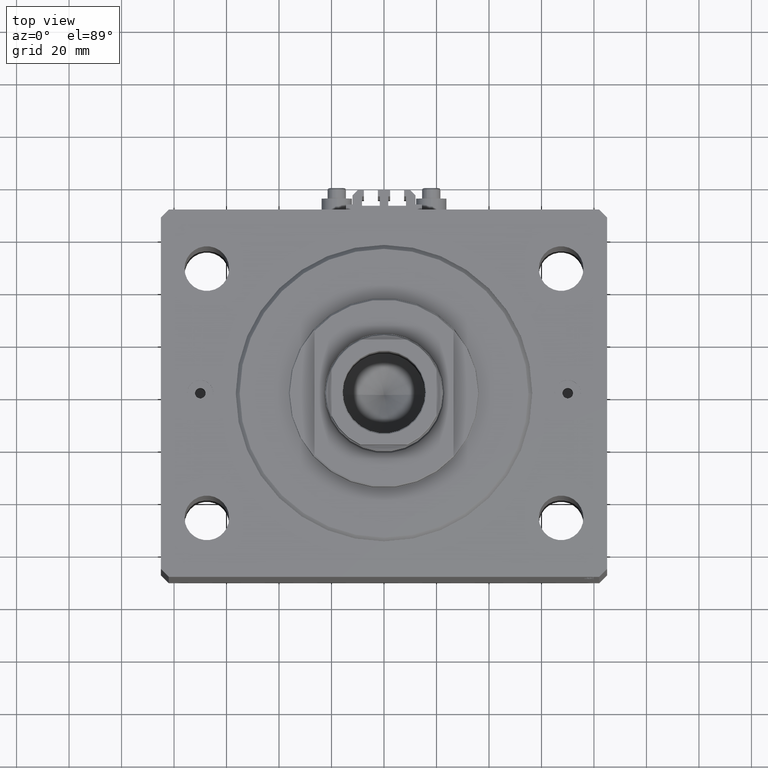
[diagram: clean part render]
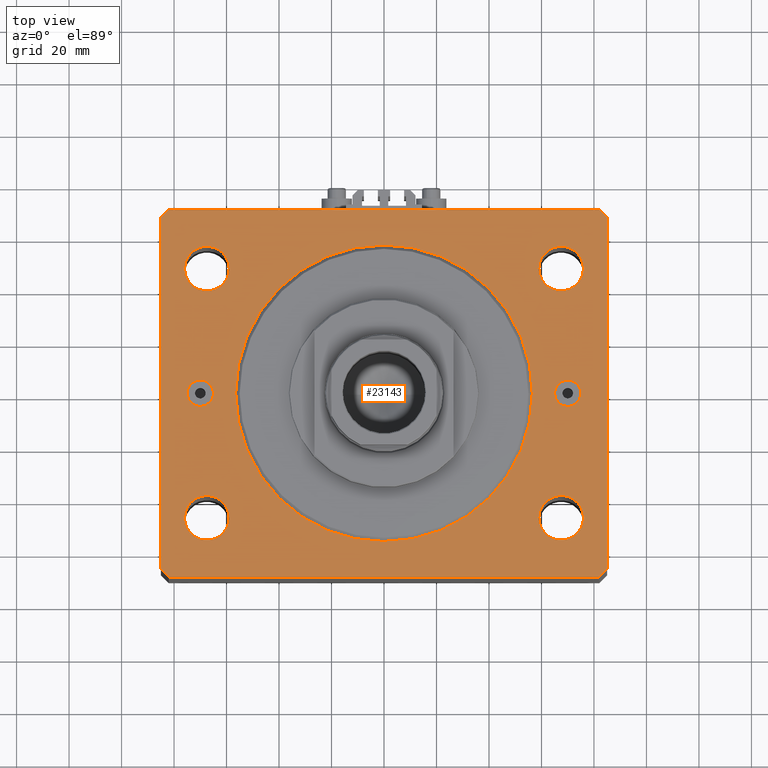
[diagram: same view with one face highlighted and labeled with its STEP entity id]
A machine part, top view. The second image highlights one B-rep face of the part: STEP entity #23143.
In plain terms, the highlighted planar face has unit normal (0, 0, 1).
Its self-contained STEP definition (entity closure, byte-faithful):
#306 = LINE ( 'NONE', #7675, #8315 ) ;
#588 = ORIENTED_EDGE ( 'NONE', *, *, #18826, .F. ) ;
#655 = CARTESIAN_POINT ( 'NONE',  ( -85.00000000000001421, 67.00000000000001421, 0.000000000000000000 ) ) ;
#1389 = CARTESIAN_POINT ( 'NONE',  ( -82.00000000000000000, 70.00000000000000000, 0.000000000000000000 ) ) ;
#1439 = VERTEX_POINT ( 'NONE', #37854 ) ;
#1448 = AXIS2_PLACEMENT_3D ( 'NONE', #32344, #7239, #25417 ) ;
#1525 = EDGE_CURVE ( 'NONE', #16187, #46411, #32898, .T. ) ;
#1529 = FACE_BOUND ( 'NONE', #45013, .T. ) ;
#1691 = ORIENTED_EDGE ( 'NONE', *, *, #9113, .T. ) ;
#2327 = DIRECTION ( 'NONE',  ( 1.000000000000000000, 0.000000000000000000, 0.000000000000000000 ) ) ;
#2812 = VERTEX_POINT ( 'NONE', #30480 ) ;
#2965 = DIRECTION ( 'NONE',  ( 0.000000000000000000, -0.000000000000000000, -1.000000000000000000 ) ) ;
#3448 = LINE ( 'NONE', #32817, #16258 ) ;
#3606 = CIRCLE ( 'NONE', #38707, 5.000000000000004441 ) ;
#3696 = ORIENTED_EDGE ( 'NONE', *, *, #9713, .T. ) ;
#3852 = DIRECTION ( 'NONE',  ( -1.000000000000000000, 0.000000000000000000, 0.000000000000000000 ) ) ;
#3910 = DIRECTION ( 'NONE',  ( 1.000000000000000000, 0.000000000000000000, 0.000000000000000000 ) ) ;
#3999 = CARTESIAN_POINT ( 'NONE',  ( -65.00000000000000000, 0.000000000000000000, 0.000000000000000000 ) ) ;
#4633 = CARTESIAN_POINT ( 'NONE',  ( -75.99999999999998579, -47.50000000000001421, 0.000000000000000000 ) ) ;
#4820 = VECTOR ( 'NONE', #3852, 1000.000000000000000 ) ;
#5186 = ORIENTED_EDGE ( 'NONE', *, *, #28212, .F. ) ;
#5228 = VERTEX_POINT ( 'NONE', #17724 ) ;
#5567 = FACE_BOUND ( 'NONE', #18167, .T. ) ;
#5610 = ORIENTED_EDGE ( 'NONE', *, *, #46601, .F. ) ;
#6072 = DIRECTION ( 'NONE',  ( 0.000000000000000000, 0.000000000000000000, 1.000000000000000000 ) ) ;
#6211 = EDGE_CURVE ( 'NONE', #1439, #46560, #3448, .T. ) ;
#7239 = DIRECTION ( 'NONE',  ( 0.000000000000000000, 0.000000000000000000, 1.000000000000000000 ) ) ;
#7332 = EDGE_CURVE ( 'NONE', #24131, #25021, #22399, .T. ) ;
#7601 = CARTESIAN_POINT ( 'NONE',  ( 85.00000000000052580, 66.99999999999995737, 0.000000000000000000 ) ) ;
#7604 = EDGE_CURVE ( 'NONE', #15631, #34339, #39711, .T. ) ;
#7675 = CARTESIAN_POINT ( 'NONE',  ( -85.00000000000000000, -67.00000000000000000, 0.000000000000000000 ) ) ;
#7809 = CIRCLE ( 'NONE', #23839, 8.499999999999992895 ) ;
#7966 = DIRECTION ( 'NONE',  ( 1.000000000000000000, 0.000000000000000000, 0.000000000000000000 ) ) ;
#8250 = EDGE_CURVE ( 'NONE', #20369, #15631, #13789, .T. ) ;
#8271 = EDGE_CURVE ( 'NONE', #2812, #37679, #39970, .T. ) ;
#8315 = VECTOR ( 'NONE', #22251, 1000.000000000000114 ) ;
#8772 = CIRCLE ( 'NONE', #38544, 56.50000000000000711 ) ;
#8904 = ORIENTED_EDGE ( 'NONE', *, *, #6211, .T. ) ;
#9113 = EDGE_CURVE ( 'NONE', #41088, #16177, #15681, .T. ) ;
#9214 = DIRECTION ( 'NONE',  ( 0.000000000000000000, 0.000000000000000000, 1.000000000000000000 ) ) ;
#9232 = CARTESIAN_POINT ( 'NONE',  ( -59.00000000000001421, 47.50000000000000000, 0.000000000000000000 ) ) ;
#9293 = AXIS2_PLACEMENT_3D ( 'NONE', #37208, #11640, #26928 ) ;
#9383 = FACE_BOUND ( 'NONE', #19707, .T. ) ;
#9535 = EDGE_LOOP ( 'NONE', ( #5186, #30686 ) ) ;
#9601 = CARTESIAN_POINT ( 'NONE',  ( 75.99999999999998579, -47.50000000000001421, 0.000000000000000000 ) ) ;
#9713 = EDGE_CURVE ( 'NONE', #46560, #42732, #25147, .T. ) ;
#9838 = ORIENTED_EDGE ( 'NONE', *, *, #22276, .T. ) ;
#10510 = DIRECTION ( 'NONE',  ( -0.7071067811865507924, -0.7071067811865441310, 0.000000000000000000 ) ) ;
#10578 = CARTESIAN_POINT ( 'NONE',  ( 59.00000000000000000, 47.49999999999999289, 0.000000000000000000 ) ) ;
#10783 = CARTESIAN_POINT ( 'NONE',  ( 82.00000000000056843, 70.00000000000000000, 0.000000000000000000 ) ) ;
#10939 = VECTOR ( 'NONE', #39376, 1000.000000000000114 ) ;
#11611 = DIRECTION ( 'NONE',  ( 1.000000000000000000, 0.000000000000000000, 0.000000000000000000 ) ) ;
#11620 = CIRCLE ( 'NONE', #23841, 8.499999999999992895 ) ;
#11640 = DIRECTION ( 'NONE',  ( 0.000000000000000000, -0.000000000000000000, -1.000000000000000000 ) ) ;
#11727 = ORIENTED_EDGE ( 'NONE', *, *, #8271, .F. ) ;
#12093 = ORIENTED_EDGE ( 'NONE', *, *, #8250, .T. ) ;
#12398 = AXIS2_PLACEMENT_3D ( 'NONE', #22383, #40303, #33831 ) ;
#12711 = ORIENTED_EDGE ( 'NONE', *, *, #34298, .F. ) ;
#12746 = DIRECTION ( 'NONE',  ( 1.000000000000000000, 0.000000000000000000, 0.000000000000000000 ) ) ;
#13047 = CARTESIAN_POINT ( 'NONE',  ( -85.00000000000001421, 67.00000000000001421, 0.000000000000000000 ) ) ;
#13391 = LINE ( 'NONE', #35619, #37296 ) ;
#13789 = LINE ( 'NONE', #28374, #10939 ) ;
#14161 = CARTESIAN_POINT ( 'NONE',  ( 82.00000000000001421, -70.00000000000000000, 0.000000000000000000 ) ) ;
#14658 = CARTESIAN_POINT ( 'NONE',  ( 65.00000000000000000, 6.123233995736770227E-16, 0.000000000000000000 ) ) ;
#14738 = CARTESIAN_POINT ( 'NONE',  ( 82.00000000000001421, -70.00000000000000000, 0.000000000000000000 ) ) ;
#14817 = VECTOR ( 'NONE', #46890, 1000.000000000000114 ) ;
#14862 = DIRECTION ( 'NONE',  ( 1.000000000000000000, 0.000000000000000000, 0.000000000000000000 ) ) ;
#15200 = DIRECTION ( 'NONE',  ( 1.035655806553317576E-16, -1.000000000000000000, 0.000000000000000000 ) ) ;
#15631 = VERTEX_POINT ( 'NONE', #38267 ) ;
#15681 = LINE ( 'NONE', #655, #17080 ) ;
#15922 = CIRCLE ( 'NONE', #1448, 5.000000000000004441 ) ;
#16177 = VERTEX_POINT ( 'NONE', #18027 ) ;
#16183 = EDGE_CURVE ( 'NONE', #5228, #21597, #8772, .T. ) ;
#16187 = VERTEX_POINT ( 'NONE', #14658 ) ;
#16258 = VECTOR ( 'NONE', #3910, 1000.000000000000000 ) ;
#16317 = FACE_BOUND ( 'NONE', #9535, .T. ) ;
#17080 = VECTOR ( 'NONE', #15200, 1000.000000000000000 ) ;
#17130 = ORIENTED_EDGE ( 'NONE', *, *, #43523, .F. ) ;
#17724 = CARTESIAN_POINT ( 'NONE',  ( 56.50000000000000711, 0.000000000000000000, 0.000000000000000000 ) ) ;
#18027 = CARTESIAN_POINT ( 'NONE',  ( -85.00000000000000000, -67.00000000000000000, 0.000000000000000000 ) ) ;
#18167 = EDGE_LOOP ( 'NONE', ( #41402, #5610 ) ) ;
#18341 = VERTEX_POINT ( 'NONE', #9232 ) ;
#18626 = CARTESIAN_POINT ( 'NONE',  ( 85.00000000000001421, -67.00000000000000000, 0.000000000000000000 ) ) ;
#18826 = EDGE_CURVE ( 'NONE', #28839, #21846, #15922, .T. ) ;
#18953 = ORIENTED_EDGE ( 'NONE', *, *, #42727, .F. ) ;
#19183 = ORIENTED_EDGE ( 'NONE', *, *, #45627, .F. ) ;
#19429 = DIRECTION ( 'NONE',  ( 1.000000000000000000, 0.000000000000000000, -0.000000000000000000 ) ) ;
#19537 = CARTESIAN_POINT ( 'NONE',  ( 85.00000000000001421, -67.00000000000000000, 0.000000000000000000 ) ) ;
#19707 = EDGE_LOOP ( 'NONE', ( #588, #29420 ) ) ;
#20088 = AXIS2_PLACEMENT_3D ( 'NONE', #23469, #45447, #41405 ) ;
#20369 = VERTEX_POINT ( 'NONE', #7601 ) ;
#20645 = DIRECTION ( 'NONE',  ( 1.000000000000000000, 0.000000000000000000, 0.000000000000000000 ) ) ;
#21427 = ORIENTED_EDGE ( 'NONE', *, *, #34456, .F. ) ;
#21597 = VERTEX_POINT ( 'NONE', #43418 ) ;
#21846 = VERTEX_POINT ( 'NONE', #45507 ) ;
#22251 = DIRECTION ( 'NONE',  ( 0.7071067811865474617, -0.7071067811865474617, 0.000000000000000000 ) ) ;
#22276 = EDGE_CURVE ( 'NONE', #42732, #20369, #30524, .T. ) ;
#22340 = EDGE_CURVE ( 'NONE', #16177, #1439, #306, .T. ) ;
#22383 = CARTESIAN_POINT ( 'NONE',  ( 0.000000000000000000, 0.000000000000000000, 0.000000000000000000 ) ) ;
#22399 = CIRCLE ( 'NONE', #20088, 8.499999999999992895 ) ;
#22611 = CARTESIAN_POINT ( 'NONE',  ( 67.50000000000000000, 47.49999999999999289, 0.000000000000000000 ) ) ;
#23007 = CIRCLE ( 'NONE', #9293, 5.000000000000004441 ) ;
#23143 = ADVANCED_FACE ( 'NONE', ( #45705, #38290, #1529, #45229, #16317, #5567, #9383, #27072 ), #34475, .T. ) ;
#23469 = CARTESIAN_POINT ( 'NONE',  ( -67.49999999999998579, -47.50000000000001421, 0.000000000000000000 ) ) ;
#23580 = VECTOR ( 'NONE', #43525, 1000.000000000000000 ) ;
#23825 = DIRECTION ( 'NONE',  ( 0.000000000000000000, 0.000000000000000000, 1.000000000000000000 ) ) ;
#23839 = AXIS2_PLACEMENT_3D ( 'NONE', #23840, #45101, #38405 ) ;
#23840 = CARTESIAN_POINT ( 'NONE',  ( -67.50000000000000000, 47.50000000000000000, 0.000000000000000000 ) ) ;
#23841 = AXIS2_PLACEMENT_3D ( 'NONE', #27380, #9214, #41488 ) ;
#24131 = VERTEX_POINT ( 'NONE', #4633 ) ;
#24236 = CARTESIAN_POINT ( 'NONE',  ( -67.49999999999998579, -47.50000000000001421, 0.000000000000000000 ) ) ;
#24521 = AXIS2_PLACEMENT_3D ( 'NONE', #27817, #2965, #42395 ) ;
#25021 = VERTEX_POINT ( 'NONE', #28869 ) ;
#25147 = LINE ( 'NONE', #14161, #14817 ) ;
#25417 = DIRECTION ( 'NONE',  ( 1.000000000000000000, 0.000000000000000000, 0.000000000000000000 ) ) ;
#25437 = DIRECTION ( 'NONE',  ( 0.000000000000000000, 0.000000000000000000, 1.000000000000000000 ) ) ;
#25760 = ORIENTED_EDGE ( 'NONE', *, *, #35835, .T. ) ;
#25933 = EDGE_LOOP ( 'NONE', ( #39026, #25760, #1691, #35532, #8904, #3696, #9838, #12093 ) ) ;
#26089 = CARTESIAN_POINT ( 'NONE',  ( -67.50000000000000000, 47.50000000000000000, 0.000000000000000000 ) ) ;
#26130 = CARTESIAN_POINT ( 'NONE',  ( 0.000000000000000000, 0.000000000000000000, 0.000000000000000000 ) ) ;
#26928 = DIRECTION ( 'NONE',  ( 1.000000000000000000, 0.000000000000000000, 0.000000000000000000 ) ) ;
#27072 = FACE_BOUND ( 'NONE', #27476, .T. ) ;
#27183 = CARTESIAN_POINT ( 'NONE',  ( 75.00000000000001421, 0.000000000000000000, 0.000000000000000000 ) ) ;
#27380 = CARTESIAN_POINT ( 'NONE',  ( 67.49999999999998579, -47.50000000000001421, 0.000000000000000000 ) ) ;
#27476 = EDGE_LOOP ( 'NONE', ( #41912, #36299 ) ) ;
#27817 = CARTESIAN_POINT ( 'NONE',  ( 70.00000000000000000, 0.000000000000000000, 0.000000000000000000 ) ) ;
#28212 = EDGE_CURVE ( 'NONE', #25021, #24131, #28376, .T. ) ;
#28374 = CARTESIAN_POINT ( 'NONE',  ( 85.00000000000052580, 66.99999999999995737, 0.000000000000000000 ) ) ;
#28376 = CIRCLE ( 'NONE', #36751, 8.499999999999992895 ) ;
#28839 = VERTEX_POINT ( 'NONE', #3999 ) ;
#28869 = CARTESIAN_POINT ( 'NONE',  ( -59.00000000000000000, -47.50000000000001421, 0.000000000000000000 ) ) ;
#29116 = VERTEX_POINT ( 'NONE', #40030 ) ;
#29420 = ORIENTED_EDGE ( 'NONE', *, *, #30130, .F. ) ;
#30130 = EDGE_CURVE ( 'NONE', #21846, #28839, #3606, .T. ) ;
#30480 = CARTESIAN_POINT ( 'NONE',  ( 76.00000000000001421, 47.49999999999999289, 0.000000000000000000 ) ) ;
#30524 = LINE ( 'NONE', #19537, #23580 ) ;
#30686 = ORIENTED_EDGE ( 'NONE', *, *, #7332, .F. ) ;
#30883 = CARTESIAN_POINT ( 'NONE',  ( 0.000000000000000000, 0.000000000000000000, 0.000000000000000000 ) ) ;
#32260 = CIRCLE ( 'NONE', #46012, 8.499999999999992895 ) ;
#32344 = CARTESIAN_POINT ( 'NONE',  ( -70.00000000000000000, 0.000000000000000000, 0.000000000000000000 ) ) ;
#32467 = VERTEX_POINT ( 'NONE', #36723 ) ;
#32817 = CARTESIAN_POINT ( 'NONE',  ( -82.00000000000000000, -70.00000000000000000, 0.000000000000000000 ) ) ;
#32898 = CIRCLE ( 'NONE', #24521, 5.000000000000004441 ) ;
#32976 = DIRECTION ( 'NONE',  ( 1.000000000000000000, 0.000000000000000000, 0.000000000000000000 ) ) ;
#33831 = DIRECTION ( 'NONE',  ( 1.000000000000000000, 0.000000000000000000, 0.000000000000000000 ) ) ;
#34298 = EDGE_CURVE ( 'NONE', #29116, #45258, #36504, .T. ) ;
#34328 = DIRECTION ( 'NONE',  ( 0.000000000000000000, 0.000000000000000000, 1.000000000000000000 ) ) ;
#34339 = VERTEX_POINT ( 'NONE', #1389 ) ;
#34456 = EDGE_CURVE ( 'NONE', #37679, #2812, #37258, .T. ) ;
#34475 = PLANE ( 'NONE',  #36586 ) ;
#35532 = ORIENTED_EDGE ( 'NONE', *, *, #22340, .T. ) ;
#35535 = CARTESIAN_POINT ( 'NONE',  ( 67.50000000000000000, 47.49999999999999289, 0.000000000000000000 ) ) ;
#35619 = CARTESIAN_POINT ( 'NONE',  ( -82.00000000000000000, 70.00000000000000000, 0.000000000000000000 ) ) ;
#35835 = EDGE_CURVE ( 'NONE', #34339, #41088, #13391, .T. ) ;
#36299 = ORIENTED_EDGE ( 'NONE', *, *, #1525, .T. ) ;
#36504 = CIRCLE ( 'NONE', #44147, 8.499999999999992895 ) ;
#36586 = AXIS2_PLACEMENT_3D ( 'NONE', #30883, #45457, #19429 ) ;
#36723 = CARTESIAN_POINT ( 'NONE',  ( -76.00000000000000000, 47.50000000000000000, 0.000000000000000000 ) ) ;
#36751 = AXIS2_PLACEMENT_3D ( 'NONE', #24236, #6072, #20645 ) ;
#37208 = CARTESIAN_POINT ( 'NONE',  ( 70.00000000000000000, 0.000000000000000000, 0.000000000000000000 ) ) ;
#37258 = CIRCLE ( 'NONE', #46439, 8.500000000000007105 ) ;
#37296 = VECTOR ( 'NONE', #10510, 1000.000000000000114 ) ;
#37679 = VERTEX_POINT ( 'NONE', #10578 ) ;
#37681 = CARTESIAN_POINT ( 'NONE',  ( 67.49999999999998579, -47.50000000000001421, 0.000000000000000000 ) ) ;
#37854 = CARTESIAN_POINT ( 'NONE',  ( -82.00000000000000000, -70.00000000000000000, 0.000000000000000000 ) ) ;
#38267 = CARTESIAN_POINT ( 'NONE',  ( 82.00000000000056843, 70.00000000000000000, 0.000000000000000000 ) ) ;
#38290 = FACE_BOUND ( 'NONE', #43001, .T. ) ;
#38356 = CIRCLE ( 'NONE', #12398, 56.50000000000000711 ) ;
#38405 = DIRECTION ( 'NONE',  ( 1.000000000000000000, 0.000000000000000000, 0.000000000000000000 ) ) ;
#38544 = AXIS2_PLACEMENT_3D ( 'NONE', #26130, #25437, #7966 ) ;
#38707 = AXIS2_PLACEMENT_3D ( 'NONE', #45971, #45475, #12746 ) ;
#39026 = ORIENTED_EDGE ( 'NONE', *, *, #7604, .T. ) ;
#39376 = DIRECTION ( 'NONE',  ( -0.7071067811865361374, 0.7071067811865588970, 0.000000000000000000 ) ) ;
#39711 = LINE ( 'NONE', #10783, #4820 ) ;
#39970 = CIRCLE ( 'NONE', #45274, 8.500000000000007105 ) ;
#40030 = CARTESIAN_POINT ( 'NONE',  ( 59.00000000000000000, -47.50000000000001421, 0.000000000000000000 ) ) ;
#40303 = DIRECTION ( 'NONE',  ( 0.000000000000000000, 0.000000000000000000, 1.000000000000000000 ) ) ;
#40433 = DIRECTION ( 'NONE',  ( 0.000000000000000000, 0.000000000000000000, 1.000000000000000000 ) ) ;
#41088 = VERTEX_POINT ( 'NONE', #13047 ) ;
#41402 = ORIENTED_EDGE ( 'NONE', *, *, #16183, .F. ) ;
#41405 = DIRECTION ( 'NONE',  ( 1.000000000000000000, 0.000000000000000000, 0.000000000000000000 ) ) ;
#41488 = DIRECTION ( 'NONE',  ( 1.000000000000000000, 0.000000000000000000, 0.000000000000000000 ) ) ;
#41802 = EDGE_LOOP ( 'NONE', ( #18953, #12711 ) ) ;
#41912 = ORIENTED_EDGE ( 'NONE', *, *, #44121, .T. ) ;
#42395 = DIRECTION ( 'NONE',  ( 1.000000000000000000, 0.000000000000000000, 0.000000000000000000 ) ) ;
#42727 = EDGE_CURVE ( 'NONE', #45258, #29116, #11620, .T. ) ;
#42732 = VERTEX_POINT ( 'NONE', #18626 ) ;
#43001 = EDGE_LOOP ( 'NONE', ( #17130, #19183 ) ) ;
#43418 = CARTESIAN_POINT ( 'NONE',  ( -56.50000000000000711, 6.919254415182546126E-15, 0.000000000000000000 ) ) ;
#43523 = EDGE_CURVE ( 'NONE', #18341, #32467, #32260, .T. ) ;
#43525 = DIRECTION ( 'NONE',  ( 3.728360903591945148E-15, 1.000000000000000000, 0.000000000000000000 ) ) ;
#44121 = EDGE_CURVE ( 'NONE', #46411, #16187, #23007, .T. ) ;
#44147 = AXIS2_PLACEMENT_3D ( 'NONE', #37681, #34328, #32976 ) ;
#44348 = DIRECTION ( 'NONE',  ( 0.000000000000000000, 0.000000000000000000, 1.000000000000000000 ) ) ;
#45013 = EDGE_LOOP ( 'NONE', ( #11727, #21427 ) ) ;
#45101 = DIRECTION ( 'NONE',  ( 0.000000000000000000, 0.000000000000000000, 1.000000000000000000 ) ) ;
#45229 = FACE_BOUND ( 'NONE', #41802, .T. ) ;
#45258 = VERTEX_POINT ( 'NONE', #9601 ) ;
#45274 = AXIS2_PLACEMENT_3D ( 'NONE', #22611, #44348, #11611 ) ;
#45447 = DIRECTION ( 'NONE',  ( 0.000000000000000000, 0.000000000000000000, 1.000000000000000000 ) ) ;
#45457 = DIRECTION ( 'NONE',  ( 0.000000000000000000, 0.000000000000000000, 1.000000000000000000 ) ) ;
#45475 = DIRECTION ( 'NONE',  ( 0.000000000000000000, 0.000000000000000000, 1.000000000000000000 ) ) ;
#45507 = CARTESIAN_POINT ( 'NONE',  ( -75.00000000000001421, 6.123233995736770227E-16, 0.000000000000000000 ) ) ;
#45627 = EDGE_CURVE ( 'NONE', #32467, #18341, #7809, .T. ) ;
#45705 = FACE_OUTER_BOUND ( 'NONE', #25933, .T. ) ;
#45971 = CARTESIAN_POINT ( 'NONE',  ( -70.00000000000000000, 0.000000000000000000, 0.000000000000000000 ) ) ;
#46012 = AXIS2_PLACEMENT_3D ( 'NONE', #26089, #40433, #14862 ) ;
#46411 = VERTEX_POINT ( 'NONE', #27183 ) ;
#46439 = AXIS2_PLACEMENT_3D ( 'NONE', #35535, #23825, #2327 ) ;
#46560 = VERTEX_POINT ( 'NONE', #14738 ) ;
#46601 = EDGE_CURVE ( 'NONE', #21597, #5228, #38356, .T. ) ;
#46890 = DIRECTION ( 'NONE',  ( 0.7071067811865474617, 0.7071067811865474617, 0.000000000000000000 ) ) ;